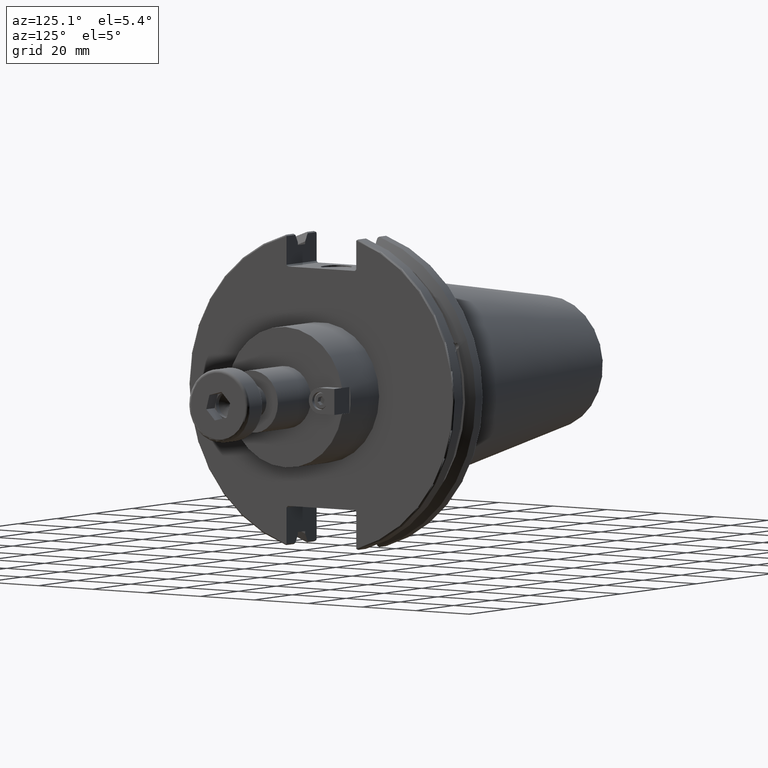
[diagram: clean part render]
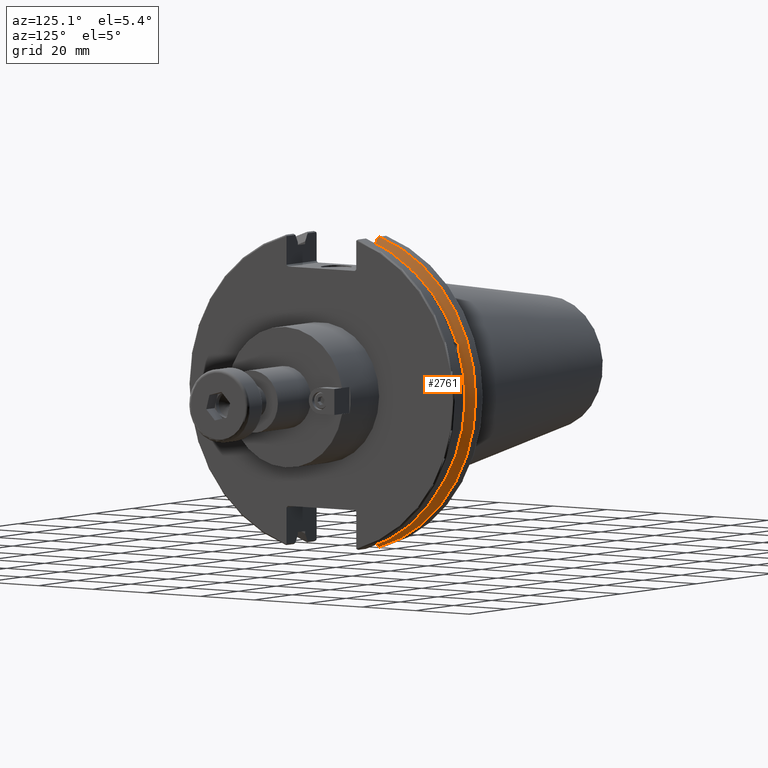
[diagram: same view with one face highlighted and labeled with its STEP entity id]
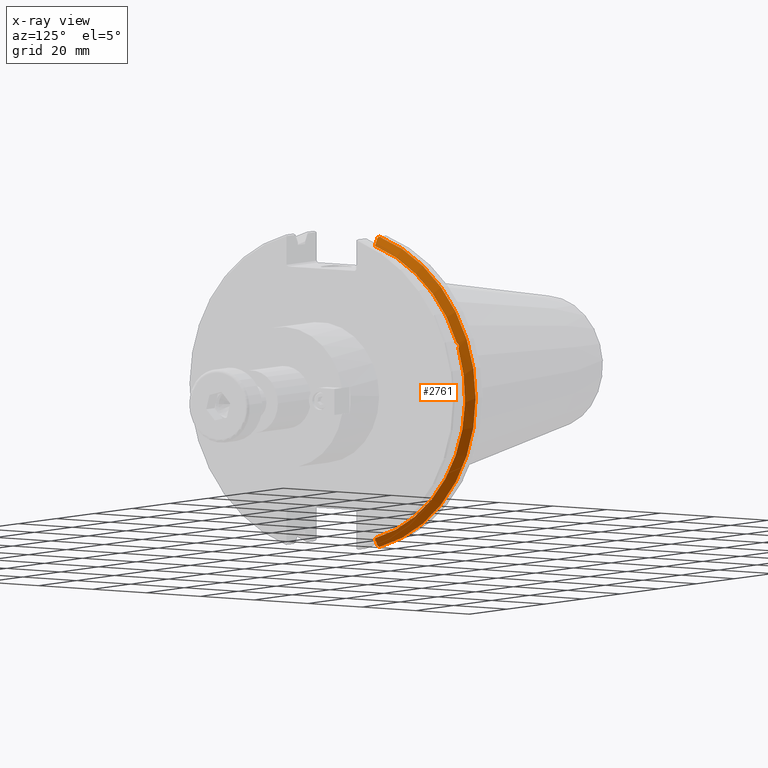
[diagram: x-ray of the same camera — body ghosted, the highlighted face saturated]
A machine part, auxiliary view. The second image highlights one B-rep face of the part: STEP entity #2761.
The next image is the same camera in x-ray: the body ghosted, the highlighted face saturated — about 0% of this face is hidden behind the body in this view.
In plain terms, the highlighted conical surface has half-angle 60 deg.
Its self-contained STEP definition (entity closure, byte-faithful):
#461=(
BOUNDED_CURVE()
B_SPLINE_CURVE(2,(#4700,#4701,#4702),.UNSPECIFIED.,.F.,.F.)
B_SPLINE_CURVE_WITH_KNOTS((3,3),(0.,0.275823910674652),.UNSPECIFIED.)
CURVE()
GEOMETRIC_REPRESENTATION_ITEM()
RATIONAL_B_SPLINE_CURVE((1.,1.00038235573731,1.00012873636533))
REPRESENTATION_ITEM('')
);
#462=(
BOUNDED_CURVE()
B_SPLINE_CURVE(2,(#4704,#4705,#4706),.UNSPECIFIED.,.F.,.F.)
B_SPLINE_CURVE_WITH_KNOTS((3,3),(0.,0.0648240472898323),.UNSPECIFIED.)
CURVE()
GEOMETRIC_REPRESENTATION_ITEM()
RATIONAL_B_SPLINE_CURVE((1.,1.00011477674853,1.00019140645976))
REPRESENTATION_ITEM('')
);
#463=(
BOUNDED_CURVE()
B_SPLINE_CURVE(2,(#4710,#4711,#4712),.UNSPECIFIED.,.F.,.F.)
B_SPLINE_CURVE_WITH_KNOTS((3,3),(0.325260944932483,0.390084992222205),
 .UNSPECIFIED.)
CURVE()
GEOMETRIC_REPRESENTATION_ITEM()
RATIONAL_B_SPLINE_CURVE((1.00019140645955,1.00011477674841,1.))
REPRESENTATION_ITEM('')
);
#464=(
BOUNDED_CURVE()
B_SPLINE_CURVE(2,(#4714,#4715,#4716),.UNSPECIFIED.,.F.,.F.)
B_SPLINE_CURVE_WITH_KNOTS((3,3),(0.0558332664491378,0.331657177124507),
 .UNSPECIFIED.)
CURVE()
GEOMETRIC_REPRESENTATION_ITEM()
RATIONAL_B_SPLINE_CURVE((1.00012873637135,1.00038235575519,1.))
REPRESENTATION_ITEM('')
);
#497=B_SPLINE_CURVE_WITH_KNOTS('',3,(#4653,#4654,#4655,#4656,#4657,#4658,
#4659,#4660,#4661,#4662,#4663,#4664,#4665,#4666),.UNSPECIFIED.,.F.,.F.,
(4,2,2,2,2,2,4),(0.42671286835872,0.441644498666905,0.480313313223129,0.518982127779352,
0.557650942335576,0.596319756891799,0.611251387199985),.UNSPECIFIED.);
#561=CONICAL_SURFACE('',#3100,47.8172386482472,1.0471975511966);
#638=CIRCLE('',#3101,46.4219772964944);
#639=CIRCLE('',#3102,49.2125);
#640=CIRCLE('',#3103,46.4219772964944);
#773=FACE_OUTER_BOUND('',#924,.T.);
#924=EDGE_LOOP('',(#2145,#2146,#2147,#2148,#2149,#2150,#2151,#2152));
#1455=VERTEX_POINT('',#4650);
#1456=VERTEX_POINT('',#4652);
#1460=VERTEX_POINT('',#4697);
#1461=VERTEX_POINT('',#4699);
#1462=VERTEX_POINT('',#4703);
#1463=VERTEX_POINT('',#4707);
#1464=VERTEX_POINT('',#4709);
#1465=VERTEX_POINT('',#4713);
#1715=EDGE_CURVE('',#1456,#1455,#497,.T.);
#1720=EDGE_CURVE('',#1460,#1455,#638,.T.);
#1721=EDGE_CURVE('',#1460,#1461,#461,.T.);
#1722=EDGE_CURVE('',#1462,#1461,#462,.T.);
#1723=EDGE_CURVE('',#1462,#1463,#639,.T.);
#1724=EDGE_CURVE('',#1464,#1463,#463,.T.);
#1725=EDGE_CURVE('',#1464,#1465,#464,.T.);
#1726=EDGE_CURVE('',#1456,#1465,#640,.T.);
#2145=ORIENTED_EDGE('',*,*,#1715,.T.);
#2146=ORIENTED_EDGE('',*,*,#1720,.F.);
#2147=ORIENTED_EDGE('',*,*,#1721,.T.);
#2148=ORIENTED_EDGE('',*,*,#1722,.F.);
#2149=ORIENTED_EDGE('',*,*,#1723,.T.);
#2150=ORIENTED_EDGE('',*,*,#1724,.F.);
#2151=ORIENTED_EDGE('',*,*,#1725,.T.);
#2152=ORIENTED_EDGE('',*,*,#1726,.F.);
#2761=ADVANCED_FACE('',(#773),#561,.T.);
#3100=AXIS2_PLACEMENT_3D('',#4696,#3559,#3560);
#3101=AXIS2_PLACEMENT_3D('',#4698,#3561,#3562);
#3102=AXIS2_PLACEMENT_3D('',#4708,#3563,#3564);
#3103=AXIS2_PLACEMENT_3D('',#4717,#3565,#3566);
#3559=DIRECTION('center_axis',(-1.,0.,0.));
#3560=DIRECTION('ref_axis',(0.,1.,0.));
#3561=DIRECTION('center_axis',(1.,0.,0.));
#3562=DIRECTION('ref_axis',(0.,0.,-1.));
#3563=DIRECTION('center_axis',(1.,0.,0.));
#3564=DIRECTION('ref_axis',(0.,0.,-1.));
#3565=DIRECTION('center_axis',(1.,0.,0.));
#3566=DIRECTION('ref_axis',(0.,0.,-1.));
#4650=CARTESIAN_POINT('',(9.2191,43.9096390749305,15.0646464421033));
#4652=CARTESIAN_POINT('',(9.2191,43.3201030900029,16.6843832486479));
#4653=CARTESIAN_POINT('Ctrl Pts',(9.21909999999999,43.3201030900029,16.6843832486479));
#4654=CARTESIAN_POINT('Ctrl Pts',(9.20211843903391,43.3613106941341,16.6592273018006));
#4655=CARTESIAN_POINT('Ctrl Pts',(9.18608675403322,43.4012416983557,16.6326763251437));
#4656=CARTESIAN_POINT('Ctrl Pts',(9.13238673845037,43.5391037343221,16.5325130832406));
#4657=CARTESIAN_POINT('Ctrl Pts',(9.09621610663555,43.6406982153491,16.4411807953719));
#4658=CARTESIAN_POINT('Ctrl Pts',(9.04690868251975,43.8110833825827,16.2291323464527));
#4659=CARTESIAN_POINT('Ctrl Pts',(9.0341,43.8794096049168,16.10796730316));
#4660=CARTESIAN_POINT('Ctrl Pts',(9.0341,43.9675796948952,15.8657219718732));
#4661=CARTESIAN_POINT('Ctrl Pts',(9.04690868251975,43.9931221605126,15.7289849146254));
#4662=CARTESIAN_POINT('Ctrl Pts',(9.09621610663555,43.9989016655819,15.4570249042867));
#4663=CARTESIAN_POINT('Ctrl Pts',(9.13238673845037,43.9797830409458,15.3217566390708));
#4664=CARTESIAN_POINT('Ctrl Pts',(9.18608675403322,43.9385582852181,15.1564111356409));
#4665=CARTESIAN_POINT('Ctrl Pts',(9.20211843903391,43.9250360001461,15.1104047527575));
#4666=CARTESIAN_POINT('Ctrl Pts',(9.2191,43.9096390749305,15.0646464421033));
#4696=CARTESIAN_POINT('Origin',(8.41354548297563,0.,0.));
#4697=CARTESIAN_POINT('',(9.2191,12.95,-44.5791147973604));
#4698=CARTESIAN_POINT('Origin',(9.2191,0.,0.));
#4699=CARTESIAN_POINT('',(7.88638960562424,12.95,-46.9780755322918));
#4700=CARTESIAN_POINT('Ctrl Pts',(9.2191,12.95,-44.5791147973604));
#4701=CARTESIAN_POINT('Ctrl Pts',(8.57020449055827,12.95,-45.7494966802153));
#4702=CARTESIAN_POINT('Ctrl Pts',(7.88638960562424,12.95,-46.9780755322918));
#4703=CARTESIAN_POINT('',(7.60799096595127,13.4317035994433,-47.3440544806494));
#4704=CARTESIAN_POINT('Ctrl Pts',(7.60799096595127,13.4317035994433,-47.3440544806494));
#4705=CARTESIAN_POINT('Ctrl Pts',(7.74826896663818,13.1896660169966,-47.1601640966265));
#4706=CARTESIAN_POINT('Ctrl Pts',(7.88638960562424,12.95,-46.9780755322918));
#4707=CARTESIAN_POINT('',(7.60799096595127,13.4317035994433,47.3440544806494));
#4708=CARTESIAN_POINT('Origin',(7.60799096595127,0.,0.));
#4709=CARTESIAN_POINT('',(7.88638960562424,12.95,46.9780755322918));
#4710=CARTESIAN_POINT('Ctrl Pts',(7.88638960562424,12.95,46.9780755322917));
#4711=CARTESIAN_POINT('Ctrl Pts',(7.74826896663821,13.1896660169966,47.1601640966264));
#4712=CARTESIAN_POINT('Ctrl Pts',(7.60799096595127,13.4317035994433,47.3440544806494));
#4713=CARTESIAN_POINT('',(9.2191,12.95,44.5791147973604));
#4714=CARTESIAN_POINT('Ctrl Pts',(7.88638960562424,12.95,46.9780755322918));
#4715=CARTESIAN_POINT('Ctrl Pts',(8.57020449055492,12.95,45.7494966802213));
#4716=CARTESIAN_POINT('Ctrl Pts',(9.2191,12.95,44.5791147973604));
#4717=CARTESIAN_POINT('Origin',(9.2191,0.,0.));